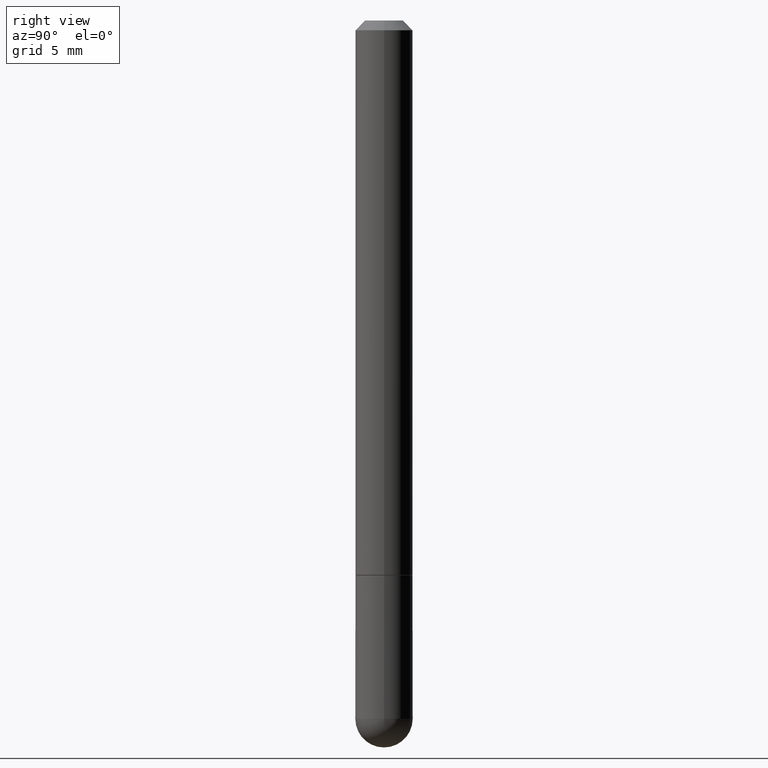
[diagram: clean part render]
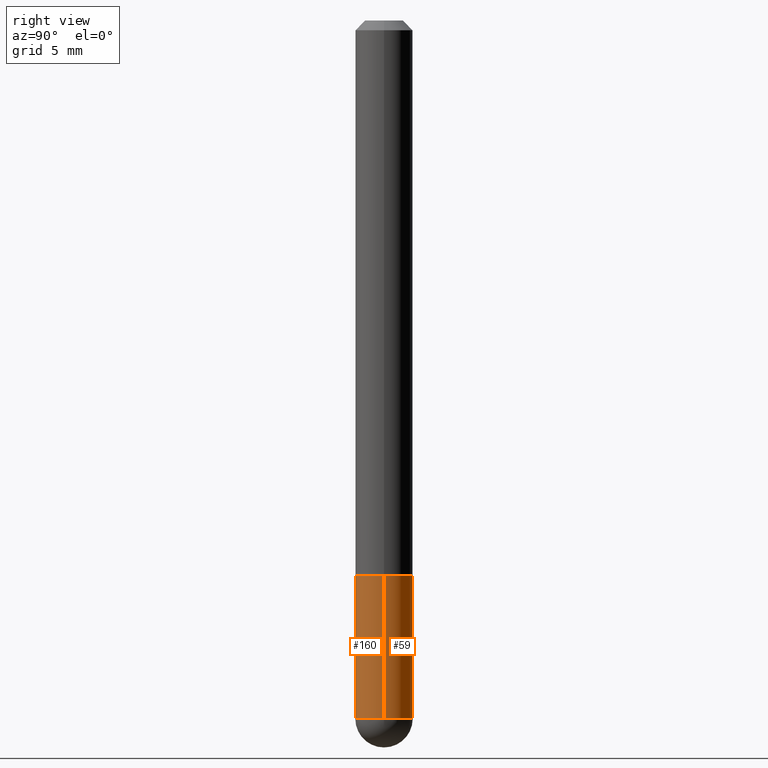
[diagram: same view with one multi-face feature highlighted, each face labeled with its STEP entity id]
A machine part, right view. The highlighted faces form ONE feature: a constant-radius fillet chain: 2 tangent blend faces with common blend radius 1.4999 mm. The faces share edges in the B-rep.
Their STEP definitions:
[1] entity #160 (Cylinder):
#5 = DIRECTION ( 'NONE',  ( 1.000000000000000000, -6.982962677686265133E-15, 0.000000000000000000 ) ) ;
#11 = ORIENTED_EDGE ( 'NONE', *, *, #154, .F. ) ;
#22 = DIRECTION ( 'NONE',  ( -2.445468806185136877E-29, 3.491481338843145188E-15, 1.000000000000000000 ) ) ;
#35 = CARTESIAN_POINT ( 'NONE',  ( 0.05905000000000001914, -4.914347271455197089E-15, -1.437049999999999939 ) ) ;
#51 = AXIS2_PLACEMENT_3D ( 'NONE', #196, #385, #262 ) ;
#55 = EDGE_CURVE ( 'NONE', #241, #83, #401, .T. ) ;
#65 = CARTESIAN_POINT ( 'NONE',  ( 0.000000000000000000, 0.000000000000000000, 0.000000000000000000 ) ) ;
#83 = VERTEX_POINT ( 'NONE', #151 ) ;
#90 = CARTESIAN_POINT ( 'NONE',  ( 0.05904999999999999832, -4.123439461173740327E-16, 2.879382386107500220E-30 ) ) ;
#102 = CARTESIAN_POINT ( 'NONE',  ( 2.792236282902188505E-29, -3.986573392691103322E-15, -1.141799999999999926 ) ) ;
#104 = DIRECTION ( 'NONE',  ( -2.445468806185136597E-29, 3.491481338843145583E-15, 1.000000000000000000 ) ) ;
#109 = CIRCLE ( 'NONE', #51, 0.05905000000000000526 ) ;
#133 = DIRECTION ( 'NONE',  ( 1.000000000000000000, -6.982962677686266711E-15, 4.876176775795936353E-29 ) ) ;
#147 = CIRCLE ( 'NONE', #215, 0.05905000000000000526 ) ;
#151 = CARTESIAN_POINT ( 'NONE',  ( 0.05904999999999999832, -4.398917338808476664E-15, -1.141799999999999926 ) ) ;
#154 = EDGE_CURVE ( 'NONE', #280, #83, #379, .T. ) ;
#156 = CARTESIAN_POINT ( 'NONE',  ( -0.05904999999999999832, -4.082427839871483465E-15, -1.141799999999999926 ) ) ;
#160 = ADVANCED_FACE ( 'NONE', ( #253 ), #187, .T. ) ;
#166 = ORIENTED_EDGE ( 'NONE', *, *, #247, .T. ) ;
#172 = LINE ( 'NONE', #200, #205 ) ;
#173 = ORIENTED_EDGE ( 'NONE', *, *, #55, .T. ) ;
#187 = CYLINDRICAL_SURFACE ( 'NONE', #199, 0.05904999999999999832 ) ;
#196 = CARTESIAN_POINT ( 'NONE',  ( 3.514260947928350449E-29, -5.017433257984542594E-15, -1.437049999999999939 ) ) ;
#199 = AXIS2_PLACEMENT_3D ( 'NONE', #65, #284, #133 ) ;
#200 = CARTESIAN_POINT ( 'NONE',  ( -0.05904999999999999832, 4.195754854663391478E-16, -2.904631170795521892E-30 ) ) ;
#202 = ORIENTED_EDGE ( 'NONE', *, *, #327, .F. ) ;
#205 = VECTOR ( 'NONE', #334, 39.37007874015748143 ) ;
#215 = AXIS2_PLACEMENT_3D ( 'NONE', #382, #104, #357 ) ;
#228 = EDGE_LOOP ( 'NONE', ( #202, #362, #166, #173, #11 ) ) ;
#232 = CARTESIAN_POINT ( 'NONE',  ( -4.195754854663065087E-16, -0.05905000000000538291, -1.437049999999999716 ) ) ;
#241 = VERTEX_POINT ( 'NONE', #35 ) ;
#243 = AXIS2_PLACEMENT_3D ( 'NONE', #102, #320, #5 ) ;
#247 = EDGE_CURVE ( 'NONE', #404, #241, #147, .T. ) ;
#253 = FACE_OUTER_BOUND ( 'NONE', #228, .T. ) ;
#262 = DIRECTION ( 'NONE',  ( 1.000000000000000000, -6.982962677686272233E-15, 0.000000000000000000 ) ) ;
#280 = VERTEX_POINT ( 'NONE', #156 ) ;
#284 = DIRECTION ( 'NONE',  ( -2.445468806185136597E-29, 3.491481338843145583E-15, 1.000000000000000000 ) ) ;
#294 = CARTESIAN_POINT ( 'NONE',  ( -0.05905000000000001914, -4.082427839871483465E-15, -1.437049999999999939 ) ) ;
#298 = VERTEX_POINT ( 'NONE', #294 ) ;
#320 = DIRECTION ( 'NONE',  ( -2.445468806185136597E-29, 3.491481338843145583E-15, 1.000000000000000000 ) ) ;
#327 = EDGE_CURVE ( 'NONE', #298, #280, #172, .T. ) ;
#334 = DIRECTION ( 'NONE',  ( -2.445468806185136877E-29, 3.491481338843145188E-15, 1.000000000000000000 ) ) ;
#338 = VECTOR ( 'NONE', #22, 39.37007874015748143 ) ;
#357 = DIRECTION ( 'NONE',  ( 1.000000000000000000, -6.982962677686272233E-15, 0.000000000000000000 ) ) ;
#362 = ORIENTED_EDGE ( 'NONE', *, *, #376, .T. ) ;
#376 = EDGE_CURVE ( 'NONE', #298, #404, #109, .T. ) ;
#379 = CIRCLE ( 'NONE', #243, 0.05904999999999999832 ) ;
#382 = CARTESIAN_POINT ( 'NONE',  ( 3.514260947928350449E-29, -5.017433257984542594E-15, -1.437049999999999939 ) ) ;
#385 = DIRECTION ( 'NONE',  ( -2.445468806185136597E-29, 3.491481338843145583E-15, 1.000000000000000000 ) ) ;
#401 = LINE ( 'NONE', #90, #338 ) ;
#404 = VERTEX_POINT ( 'NONE', #232 ) ;
[2] entity #59 (Cylinder):
#15 = EDGE_CURVE ( 'NONE', #241, #261, #259, .T. ) ;
#22 = DIRECTION ( 'NONE',  ( -2.445468806185136877E-29, 3.491481338843145188E-15, 1.000000000000000000 ) ) ;
#35 = CARTESIAN_POINT ( 'NONE',  ( 0.05905000000000001914, -4.914347271455197089E-15, -1.437049999999999939 ) ) ;
#42 = ORIENTED_EDGE ( 'NONE', *, *, #242, .T. ) ;
#46 = EDGE_CURVE ( 'NONE', #83, #280, #274, .T. ) ;
#55 = EDGE_CURVE ( 'NONE', #241, #83, #401, .T. ) ;
#56 = CARTESIAN_POINT ( 'NONE',  ( 3.514260947928350449E-29, -5.017433257984542594E-15, -1.437049999999999939 ) ) ;
#59 = ADVANCED_FACE ( 'NONE', ( #340 ), #345, .T. ) ;
#64 = CIRCLE ( 'NONE', #107, 0.05905000000000000526 ) ;
#77 = ORIENTED_EDGE ( 'NONE', *, *, #55, .F. ) ;
#83 = VERTEX_POINT ( 'NONE', #151 ) ;
#89 = DIRECTION ( 'NONE',  ( 1.000000000000000000, -6.982962677686272233E-15, 0.000000000000000000 ) ) ;
#90 = CARTESIAN_POINT ( 'NONE',  ( 0.05904999999999999832, -4.123439461173740327E-16, 2.879382386107500220E-30 ) ) ;
#100 = AXIS2_PLACEMENT_3D ( 'NONE', #177, #409, #210 ) ;
#107 = AXIS2_PLACEMENT_3D ( 'NONE', #252, #378, #159 ) ;
#118 = EDGE_LOOP ( 'NONE', ( #42, #394, #270, #77, #265 ) ) ;
#151 = CARTESIAN_POINT ( 'NONE',  ( 0.05904999999999999832, -4.398917338808476664E-15, -1.141799999999999926 ) ) ;
#156 = CARTESIAN_POINT ( 'NONE',  ( -0.05904999999999999832, -4.082427839871483465E-15, -1.141799999999999926 ) ) ;
#159 = DIRECTION ( 'NONE',  ( 1.000000000000000000, -6.982962677686272233E-15, 0.000000000000000000 ) ) ;
#172 = LINE ( 'NONE', #200, #205 ) ;
#177 = CARTESIAN_POINT ( 'NONE',  ( 2.792236282902188505E-29, -3.986573392691103322E-15, -1.141799999999999926 ) ) ;
#181 = DIRECTION ( 'NONE',  ( -2.445468806185136597E-29, 3.491481338843145583E-15, 1.000000000000000000 ) ) ;
#188 = AXIS2_PLACEMENT_3D ( 'NONE', #56, #181, #89 ) ;
#200 = CARTESIAN_POINT ( 'NONE',  ( -0.05904999999999999832, 4.195754854663391478E-16, -2.904631170795521892E-30 ) ) ;
#205 = VECTOR ( 'NONE', #334, 39.37007874015748143 ) ;
#210 = DIRECTION ( 'NONE',  ( 1.000000000000000000, -6.982962677686265133E-15, 0.000000000000000000 ) ) ;
#212 = DIRECTION ( 'NONE',  ( -2.445468806185136597E-29, 3.491481338843145583E-15, 1.000000000000000000 ) ) ;
#216 = CARTESIAN_POINT ( 'NONE',  ( 4.123439461174083974E-16, 0.05904999999999487742, -1.437050000000000161 ) ) ;
#241 = VERTEX_POINT ( 'NONE', #35 ) ;
#242 = EDGE_CURVE ( 'NONE', #261, #298, #64, .T. ) ;
#252 = CARTESIAN_POINT ( 'NONE',  ( 3.514260947928350449E-29, -5.017433257984542594E-15, -1.437049999999999939 ) ) ;
#257 = AXIS2_PLACEMENT_3D ( 'NONE', #272, #212, #342 ) ;
#259 = CIRCLE ( 'NONE', #188, 0.05905000000000000526 ) ;
#261 = VERTEX_POINT ( 'NONE', #216 ) ;
#265 = ORIENTED_EDGE ( 'NONE', *, *, #15, .T. ) ;
#270 = ORIENTED_EDGE ( 'NONE', *, *, #46, .F. ) ;
#272 = CARTESIAN_POINT ( 'NONE',  ( 0.000000000000000000, 0.000000000000000000, 0.000000000000000000 ) ) ;
#274 = CIRCLE ( 'NONE', #100, 0.05904999999999999832 ) ;
#280 = VERTEX_POINT ( 'NONE', #156 ) ;
#294 = CARTESIAN_POINT ( 'NONE',  ( -0.05905000000000001914, -4.082427839871483465E-15, -1.437049999999999939 ) ) ;
#298 = VERTEX_POINT ( 'NONE', #294 ) ;
#327 = EDGE_CURVE ( 'NONE', #298, #280, #172, .T. ) ;
#334 = DIRECTION ( 'NONE',  ( -2.445468806185136877E-29, 3.491481338843145188E-15, 1.000000000000000000 ) ) ;
#338 = VECTOR ( 'NONE', #22, 39.37007874015748143 ) ;
#340 = FACE_OUTER_BOUND ( 'NONE', #118, .T. ) ;
#342 = DIRECTION ( 'NONE',  ( 1.000000000000000000, -6.982962677686266711E-15, 4.876176775795936353E-29 ) ) ;
#345 = CYLINDRICAL_SURFACE ( 'NONE', #257, 0.05904999999999999832 ) ;
#378 = DIRECTION ( 'NONE',  ( -2.445468806185136597E-29, 3.491481338843145583E-15, 1.000000000000000000 ) ) ;
#394 = ORIENTED_EDGE ( 'NONE', *, *, #327, .T. ) ;
#401 = LINE ( 'NONE', #90, #338 ) ;
#409 = DIRECTION ( 'NONE',  ( -2.445468806185136597E-29, 3.491481338843145583E-15, 1.000000000000000000 ) ) ;